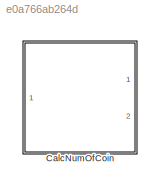
MODEL slx_e0a766ab264d
KIND library
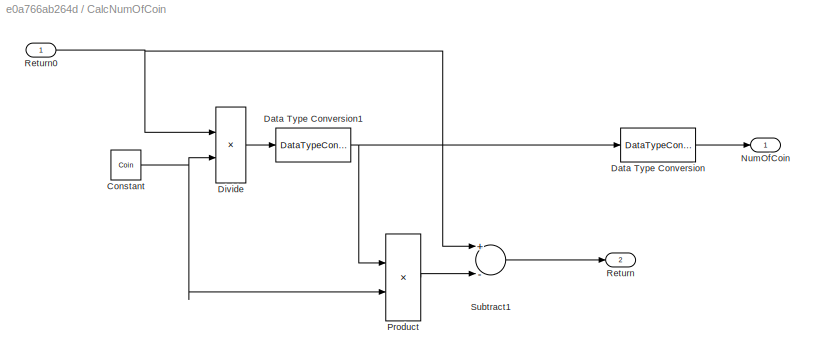
BLOCK [SubSystem] CalcNumOfCoin
  FunctionWithSeparateData = off
  MaskHideContents = off
  MinAlgLoopOccurrences = off
  Opaque = off
  Ports = [1, 2]
  PropExecContextOutsideSubsystem = off
  RTWSystemCode = Auto
  RequestExecContextInheritance = off
BLOCK [Constant] CalcNumOfCoin/Constant
  Value = Coin
BLOCK [DataTypeConversion] CalcNumOfCoin/Data Type Conversion
  RndMeth = Floor
  SaturateOnIntegerOverflow = off
BLOCK [DataTypeConversion] CalcNumOfCoin/Data Type Conversion1
  OutDataTypeStr = int8
  RndMeth = Floor
  SaturateOnIntegerOverflow = off
BLOCK [Product] CalcNumOfCoin/Divide
  InputSameDT = off
  Inputs = */
  OutDataTypeStr = int8
  Ports = [2, 1]
  RndMeth = Floor
  SaturateOnIntegerOverflow = off
BLOCK [Outport] CalcNumOfCoin/NumOfCoin
  IconDisplay = Port number
BLOCK [Product] CalcNumOfCoin/Product
  InputSameDT = off
  OutDataTypeStr = Inherit: Inherit via internal rule
  Ports = [2, 1]
  SaturateOnIntegerOverflow = off
BLOCK [Outport] CalcNumOfCoin/Return
  IconDisplay = Port number
  Port = 2
BLOCK [Inport] CalcNumOfCoin/Return0
  IconDisplay = Port number
BLOCK [Sum] CalcNumOfCoin/Subtract1
  InputSameDT = off
  Inputs = +-
  OutDataTypeStr = Inherit: Inherit via internal rule
  Ports = [2, 1]
  SaturateOnIntegerOverflow = off
NET CalcNumOfCoin/Constant:1 -> CalcNumOfCoin/Divide:2, CalcNumOfCoin/Product:2
NET CalcNumOfCoin/Data Type Conversion1:1 -> CalcNumOfCoin/Data Type Conversion:1, CalcNumOfCoin/Product:1
LINE CalcNumOfCoin/Data Type Conversion:1 -> CalcNumOfCoin/NumOfCoin:1
LINE CalcNumOfCoin/Divide:1 -> CalcNumOfCoin/Data Type Conversion1:1
LINE CalcNumOfCoin/Product:1 -> CalcNumOfCoin/Subtract1:2
NET CalcNumOfCoin/Return0:1 -> CalcNumOfCoin/Divide:1, CalcNumOfCoin/Subtract1:1
LINE CalcNumOfCoin/Subtract1:1 -> CalcNumOfCoin/Return:1
note: NET lines group one-source signal fan-out (src -> all destinations, sorted); 1:1 wires keep LINE
